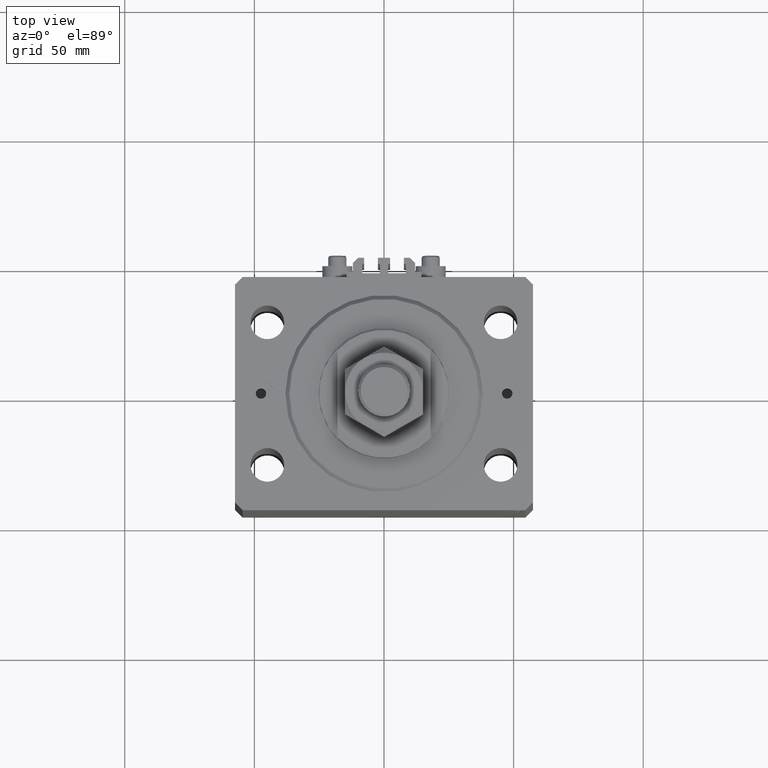
[diagram: clean part render]
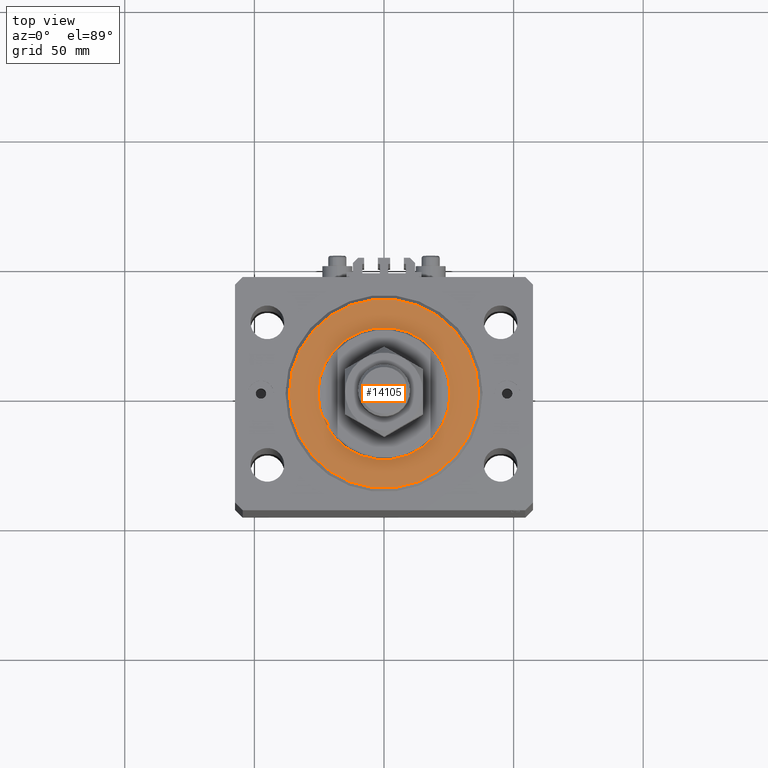
[diagram: same view with one face highlighted and labeled with its STEP entity id]
A machine part, top view. The second image highlights one B-rep face of the part: STEP entity #14105.
In plain terms, the highlighted planar face has unit normal (0, 0, -1).
Its self-contained STEP definition (entity closure, byte-faithful):
#1366 = VERTEX_POINT ( 'NONE', #12358 ) ;
#2416 = CARTESIAN_POINT ( 'NONE',  ( 0.000000000000000000, 0.000000000000000000, 0.000000000000000000 ) ) ;
#6282 = VERTEX_POINT ( 'NONE', #45246 ) ;
#6481 = CIRCLE ( 'NONE', #12782, 36.50000000000000000 ) ;
#8629 = DIRECTION ( 'NONE',  ( 1.000000000000000000, 0.000000000000000000, 0.000000000000000000 ) ) ;
#10075 = DIRECTION ( 'NONE',  ( 1.000000000000000000, 0.000000000000000000, 0.000000000000000000 ) ) ;
#10706 = DIRECTION ( 'NONE',  ( 1.000000000000000000, 0.000000000000000000, 0.000000000000000000 ) ) ;
#11010 = CARTESIAN_POINT ( 'NONE',  ( 0.000000000000000000, 0.000000000000000000, 0.000000000000000000 ) ) ;
#11572 = AXIS2_PLACEMENT_3D ( 'NONE', #29448, #18826, #10706 ) ;
#11850 = CARTESIAN_POINT ( 'NONE',  ( 0.000000000000000000, 0.000000000000000000, 0.000000000000000000 ) ) ;
#12358 = CARTESIAN_POINT ( 'NONE',  ( 36.50000000000000000, 0.000000000000000000, 0.000000000000000000 ) ) ;
#12782 = AXIS2_PLACEMENT_3D ( 'NONE', #26823, #39174, #31509 ) ;
#13773 = DIRECTION ( 'NONE',  ( 0.000000000000000000, 0.000000000000000000, 1.000000000000000000 ) ) ;
#14105 = ADVANCED_FACE ( 'NONE', ( #41609, #29758 ), #44839, .F. ) ;
#14980 = EDGE_CURVE ( 'NONE', #1366, #31563, #34901, .T. ) ;
#18826 = DIRECTION ( 'NONE',  ( 0.000000000000000000, 0.000000000000000000, 1.000000000000000000 ) ) ;
#19358 = EDGE_LOOP ( 'NONE', ( #34831, #47402 ) ) ;
#22359 = DIRECTION ( 'NONE',  ( 1.000000000000000000, 0.000000000000000000, -0.000000000000000000 ) ) ;
#24788 = EDGE_CURVE ( 'NONE', #6282, #26836, #38126, .T. ) ;
#26755 = EDGE_LOOP ( 'NONE', ( #30727, #30564 ) ) ;
#26823 = CARTESIAN_POINT ( 'NONE',  ( 0.000000000000000000, 0.000000000000000000, 0.000000000000000000 ) ) ;
#26836 = VERTEX_POINT ( 'NONE', #29647 ) ;
#29446 = AXIS2_PLACEMENT_3D ( 'NONE', #2416, #13773, #10075 ) ;
#29448 = CARTESIAN_POINT ( 'NONE',  ( 0.000000000000000000, 0.000000000000000000, 0.000000000000000000 ) ) ;
#29647 = CARTESIAN_POINT ( 'NONE',  ( -25.50000000000000355, 3.122849337825751011E-15, 2.168404344971008868E-16 ) ) ;
#29758 = FACE_OUTER_BOUND ( 'NONE', #26755, .T. ) ;
#30564 = ORIENTED_EDGE ( 'NONE', *, *, #31775, .T. ) ;
#30727 = ORIENTED_EDGE ( 'NONE', *, *, #14980, .T. ) ;
#31509 = DIRECTION ( 'NONE',  ( 1.000000000000000000, 0.000000000000000000, 0.000000000000000000 ) ) ;
#31563 = VERTEX_POINT ( 'NONE', #35330 ) ;
#31775 = EDGE_CURVE ( 'NONE', #31563, #1366, #6481, .T. ) ;
#34831 = ORIENTED_EDGE ( 'NONE', *, *, #24788, .T. ) ;
#34901 = CIRCLE ( 'NONE', #45174, 36.50000000000000000 ) ;
#35330 = CARTESIAN_POINT ( 'NONE',  ( -36.50000000000000000, 4.561809326823889791E-15, 0.000000000000000000 ) ) ;
#38126 = CIRCLE ( 'NONE', #29446, 25.50000000000000355 ) ;
#39174 = DIRECTION ( 'NONE',  ( -0.000000000000000000, -0.000000000000000000, -1.000000000000000000 ) ) ;
#41132 = DIRECTION ( 'NONE',  ( 0.000000000000000000, 0.000000000000000000, 1.000000000000000000 ) ) ;
#41609 = FACE_BOUND ( 'NONE', #19358, .T. ) ;
#42450 = DIRECTION ( 'NONE',  ( -0.000000000000000000, -0.000000000000000000, -1.000000000000000000 ) ) ;
#43118 = CIRCLE ( 'NONE', #11572, 25.50000000000000355 ) ;
#44839 = PLANE ( 'NONE',  #45914 ) ;
#45174 = AXIS2_PLACEMENT_3D ( 'NONE', #11850, #42450, #8629 ) ;
#45246 = CARTESIAN_POINT ( 'NONE',  ( 25.50000000000000355, 0.000000000000000000, 2.168404344971008868E-16 ) ) ;
#45914 = AXIS2_PLACEMENT_3D ( 'NONE', #11010, #41132, #22359 ) ;
#46811 = EDGE_CURVE ( 'NONE', #26836, #6282, #43118, .T. ) ;
#47402 = ORIENTED_EDGE ( 'NONE', *, *, #46811, .T. ) ;